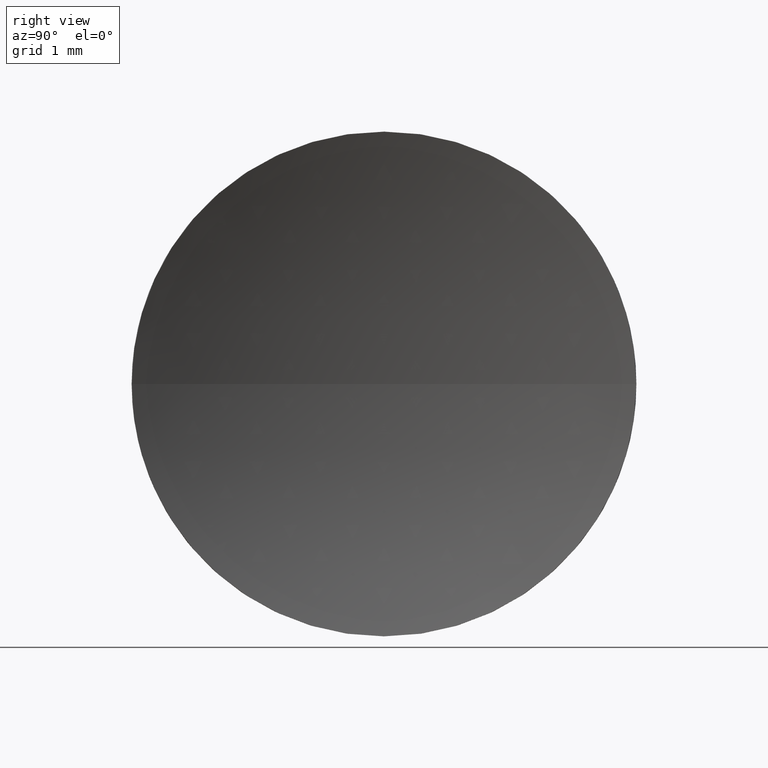
[diagram: clean part render]
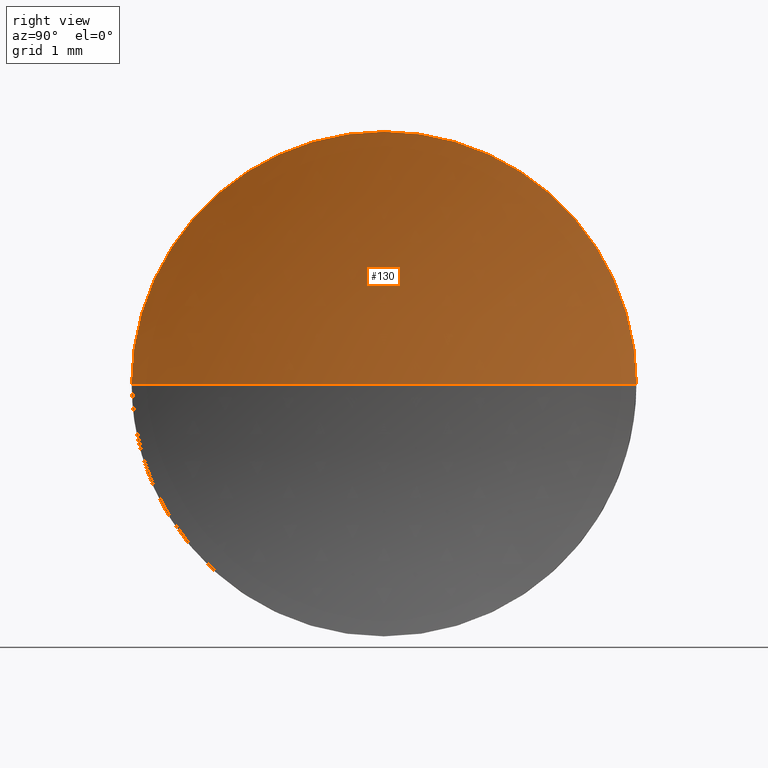
[diagram: same view with one face highlighted and labeled with its STEP entity id]
A machine part, right view. The second image highlights one B-rep face of the part: STEP entity #130.
In plain terms, the highlighted spherical surface has radius 10.33 mm.
Its self-contained STEP definition (entity closure, byte-faithful):
#2 = CARTESIAN_POINT ( 'NONE',  ( 34.13926883257448700, 13.03112609140304900, 0.0000000000000000000 ) ) ;
#14 = CIRCLE ( 'NONE', #125, 10.32999999999999800 ) ;
#26 = EDGE_CURVE ( 'NONE', #182, #69, #14, .T. ) ;
#27 = CARTESIAN_POINT ( 'NONE',  ( 24.30126090413694200, 13.03112609140304000, 0.0000000000000000000 ) ) ;
#30 = DIRECTION ( 'NONE',  ( 0.0000000000000000000, -1.000000000000000000, -1.224646799147353200E-016 ) ) ;
#39 = EDGE_CURVE ( 'NONE', #182, #70, #60, .T. ) ;
#40 = CARTESIAN_POINT ( 'NONE',  ( 24.30126090413694200, 13.03112609140304000, 0.0000000000000000000 ) ) ;
#41 = DIRECTION ( 'NONE',  ( -1.000000000000000000, -0.0000000000000000000, -0.0000000000000000000 ) ) ;
#42 = EDGE_LOOP ( 'NONE', ( #143, #115, #186, #160 ) ) ;
#43 = EDGE_CURVE ( 'NONE', #78, #69, #133, .T. ) ;
#47 = DIRECTION ( 'NONE',  ( 0.0000000000000000000, 0.0000000000000000000, 1.000000000000000000 ) ) ;
#54 = DIRECTION ( 'NONE',  ( -1.000000000000000000, -0.0000000000000000000, -0.0000000000000000000 ) ) ;
#58 = EDGE_CURVE ( 'NONE', #70, #78, #98, .T. ) ;
#60 = CIRCLE ( 'NONE', #134, 3.150000000000001700 ) ;
#65 = AXIS2_PLACEMENT_3D ( 'NONE', #144, #47, #184 ) ;
#69 = VERTEX_POINT ( 'NONE', #72 ) ;
#70 = VERTEX_POINT ( 'NONE', #100 ) ;
#72 = CARTESIAN_POINT ( 'NONE',  ( 23.80926883257448900, 13.03112609140304900, 0.0000000000000000000 ) ) ;
#78 = VERTEX_POINT ( 'NONE', #157 ) ;
#98 = CIRCLE ( 'NONE', #150, 3.150000000000001700 ) ;
#100 = CARTESIAN_POINT ( 'NONE',  ( 24.30126090413694200, 13.03112609140304000, 3.150000000000001200 ) ) ;
#112 = DIRECTION ( 'NONE',  ( 0.0000000000000000000, 0.0000000000000000000, 1.000000000000000000 ) ) ;
#114 = CARTESIAN_POINT ( 'NONE',  ( 34.13926883257448700, 13.03112609140304900, 0.0000000000000000000 ) ) ;
#115 = ORIENTED_EDGE ( 'NONE', *, *, #58, .F. ) ;
#125 = AXIS2_PLACEMENT_3D ( 'NONE', #2, #126, #141 ) ;
#126 = DIRECTION ( 'NONE',  ( 0.0000000000000000000, 0.0000000000000000000, -1.000000000000000000 ) ) ;
#130 = ADVANCED_FACE ( 'NONE', ( #181 ), #185, .F. ) ;
#133 = CIRCLE ( 'NONE', #147, 10.32999999999999800 ) ;
#134 = AXIS2_PLACEMENT_3D ( 'NONE', #40, #41, #112 ) ;
#141 = DIRECTION ( 'NONE',  ( -1.000000000000000000, 0.0000000000000000000, 0.0000000000000000000 ) ) ;
#143 = ORIENTED_EDGE ( 'NONE', *, *, #43, .F. ) ;
#144 = CARTESIAN_POINT ( 'NONE',  ( 34.13926883257448700, 13.03112609140304900, 0.0000000000000000000 ) ) ;
#147 = AXIS2_PLACEMENT_3D ( 'NONE', #114, #174, #30 ) ;
#150 = AXIS2_PLACEMENT_3D ( 'NONE', #27, #54, #156 ) ;
#156 = DIRECTION ( 'NONE',  ( 0.0000000000000000000, 0.0000000000000000000, 1.000000000000000000 ) ) ;
#157 = CARTESIAN_POINT ( 'NONE',  ( 24.30126090413694200, 16.18112609140304100, 3.857637417314157300E-016 ) ) ;
#160 = ORIENTED_EDGE ( 'NONE', *, *, #26, .T. ) ;
#174 = DIRECTION ( 'NONE',  ( 0.0000000000000000000, -1.224646799147353200E-016, 1.000000000000000000 ) ) ;
#179 = CARTESIAN_POINT ( 'NONE',  ( 24.30126090413694200, 9.881126091403045200, 0.0000000000000000000 ) ) ;
#181 = FACE_OUTER_BOUND ( 'NONE', #42, .T. ) ;
#182 = VERTEX_POINT ( 'NONE', #179 ) ;
#184 = DIRECTION ( 'NONE',  ( 0.0000000000000000000, -1.000000000000000000, 0.0000000000000000000 ) ) ;
#185 = SPHERICAL_SURFACE ( 'NONE', #65, 10.32999999999999800 ) ;
#186 = ORIENTED_EDGE ( 'NONE', *, *, #39, .F. ) ;